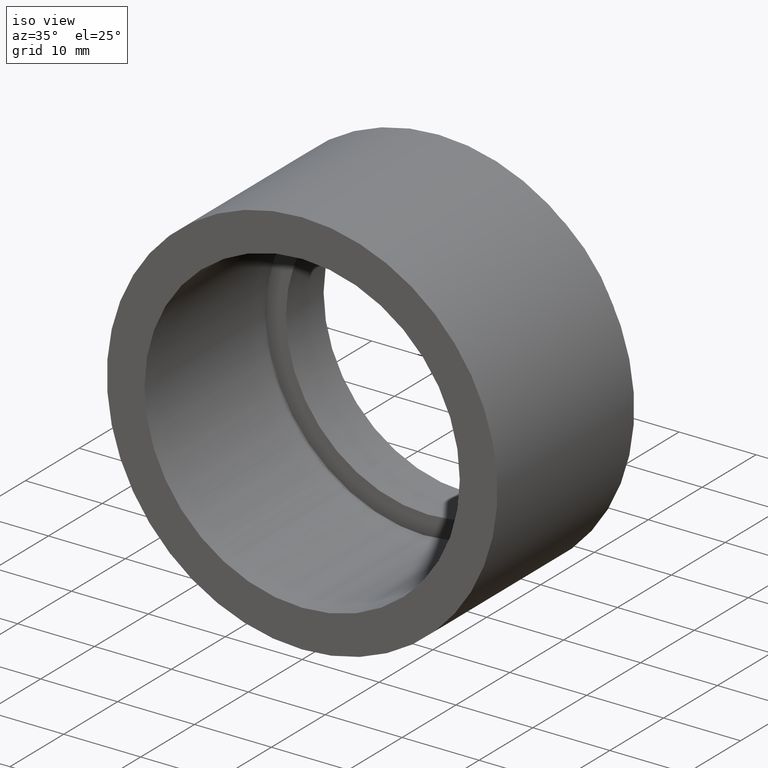
[diagram: clean part render]
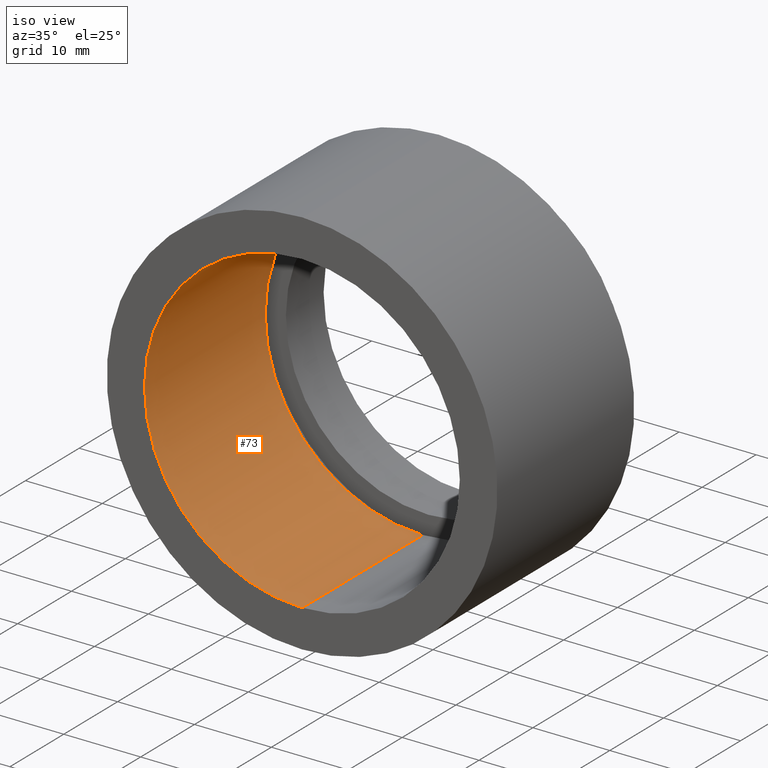
[diagram: same view with one face highlighted and labeled with its STEP entity id]
A machine part, iso view. The second image highlights one B-rep face of the part: STEP entity #73.
In plain terms, the highlighted cylindrical surface (partial cylindrical patch) has radius 20.5 mm, axis along (-0, 1, -0).
Its self-contained STEP definition (entity closure, byte-faithful):
#15 = DIRECTION ( 'NONE',  ( 0.0000000000000000000, 0.0000000000000000000, 1.000000000000000000 ) ) ;
#30 = AXIS2_PLACEMENT_3D ( 'NONE', #340, #155, #15 ) ;
#31 = EDGE_LOOP ( 'NONE', ( #93, #268, #159, #392 ) ) ;
#56 = EDGE_CURVE ( 'NONE', #103, #614, #60, .T. ) ;
#60 = LINE ( 'NONE', #295, #552 ) ;
#73 = ADVANCED_FACE ( 'NONE', ( #454 ), #208, .F. ) ;
#87 = DIRECTION ( 'NONE',  ( -0.0000000000000000000, 1.000000000000000000, -0.0000000000000000000 ) ) ;
#93 = ORIENTED_EDGE ( 'NONE', *, *, #501, .F. ) ;
#95 = LINE ( 'NONE', #515, #132 ) ;
#96 = CARTESIAN_POINT ( 'NONE',  ( 0.0000000000000000000, 22.39999999999997700, 20.50000000000002100 ) ) ;
#103 = VERTEX_POINT ( 'NONE', #541 ) ;
#112 = CARTESIAN_POINT ( 'NONE',  ( 0.0000000000000000000, 161.3761669434274500, 0.0000000000000000000 ) ) ;
#123 = CARTESIAN_POINT ( 'NONE',  ( 0.0000000000000000000, 22.39999999999997700, 0.0000000000000000000 ) ) ;
#132 = VECTOR ( 'NONE', #280, 1000.000000000000000 ) ;
#155 = DIRECTION ( 'NONE',  ( -0.0000000000000000000, 1.000000000000000000, -0.0000000000000000000 ) ) ;
#159 = ORIENTED_EDGE ( 'NONE', *, *, #228, .T. ) ;
#208 = CYLINDRICAL_SURFACE ( 'NONE', #459, 20.50000000000002100 ) ;
#228 = EDGE_CURVE ( 'NONE', #614, #442, #382, .T. ) ;
#229 = CARTESIAN_POINT ( 'NONE',  ( 0.0000000000000000000, -2.775557561562891400E-014, 20.50000000000002100 ) ) ;
#252 = DIRECTION ( 'NONE',  ( 0.0000000000000000000, 0.0000000000000000000, 1.000000000000000000 ) ) ;
#268 = ORIENTED_EDGE ( 'NONE', *, *, #56, .T. ) ;
#280 = DIRECTION ( 'NONE',  ( -0.0000000000000000000, 1.000000000000000000, -0.0000000000000000000 ) ) ;
#295 = CARTESIAN_POINT ( 'NONE',  ( 2.510525938252076500E-015, 161.3761669434274500, -20.50000000000002100 ) ) ;
#311 = VERTEX_POINT ( 'NONE', #229 ) ;
#340 = CARTESIAN_POINT ( 'NONE',  ( 0.0000000000000000000, -2.775557561562891400E-014, 0.0000000000000000000 ) ) ;
#347 = DIRECTION ( 'NONE',  ( -0.0000000000000000000, 1.000000000000000000, -0.0000000000000000000 ) ) ;
#351 = CIRCLE ( 'NONE', #30, 20.50000000000002100 ) ;
#355 = DIRECTION ( 'NONE',  ( 0.0000000000000000000, 0.0000000000000000000, 1.000000000000000000 ) ) ;
#382 = CIRCLE ( 'NONE', #573, 20.50000000000002100 ) ;
#392 = ORIENTED_EDGE ( 'NONE', *, *, #425, .F. ) ;
#395 = DIRECTION ( 'NONE',  ( -0.0000000000000000000, 1.000000000000000000, -0.0000000000000000000 ) ) ;
#425 = EDGE_CURVE ( 'NONE', #311, #442, #95, .T. ) ;
#442 = VERTEX_POINT ( 'NONE', #96 ) ;
#454 = FACE_OUTER_BOUND ( 'NONE', #31, .T. ) ;
#459 = AXIS2_PLACEMENT_3D ( 'NONE', #112, #395, #252 ) ;
#477 = CARTESIAN_POINT ( 'NONE',  ( 2.510525938252076500E-015, 22.39999999999997700, -20.50000000000002100 ) ) ;
#501 = EDGE_CURVE ( 'NONE', #103, #311, #351, .T. ) ;
#515 = CARTESIAN_POINT ( 'NONE',  ( 0.0000000000000000000, 161.3761669434274500, 20.50000000000002100 ) ) ;
#541 = CARTESIAN_POINT ( 'NONE',  ( 2.510525938252076500E-015, -2.775557561562891400E-014, -20.50000000000002100 ) ) ;
#552 = VECTOR ( 'NONE', #347, 1000.000000000000000 ) ;
#573 = AXIS2_PLACEMENT_3D ( 'NONE', #123, #87, #355 ) ;
#614 = VERTEX_POINT ( 'NONE', #477 ) ;